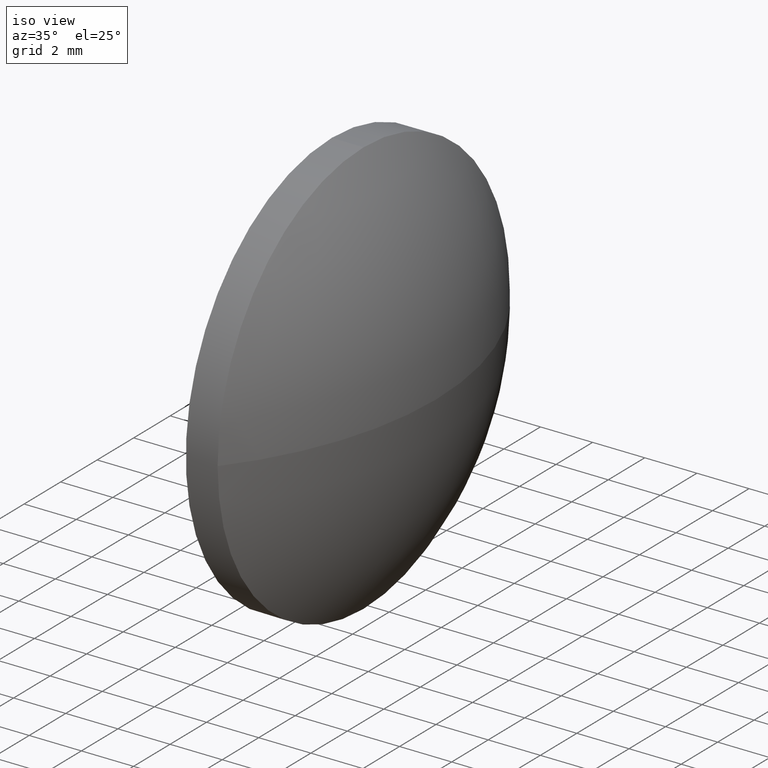
[diagram: clean part render]
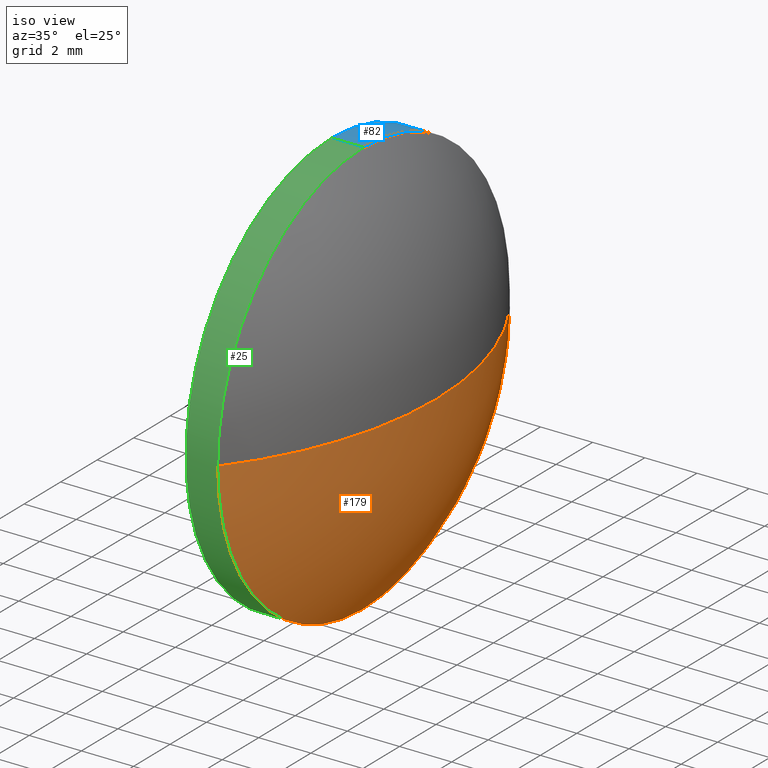
[diagram: same view with three faces highlighted in distinct colors, each labeled with its STEP entity id]
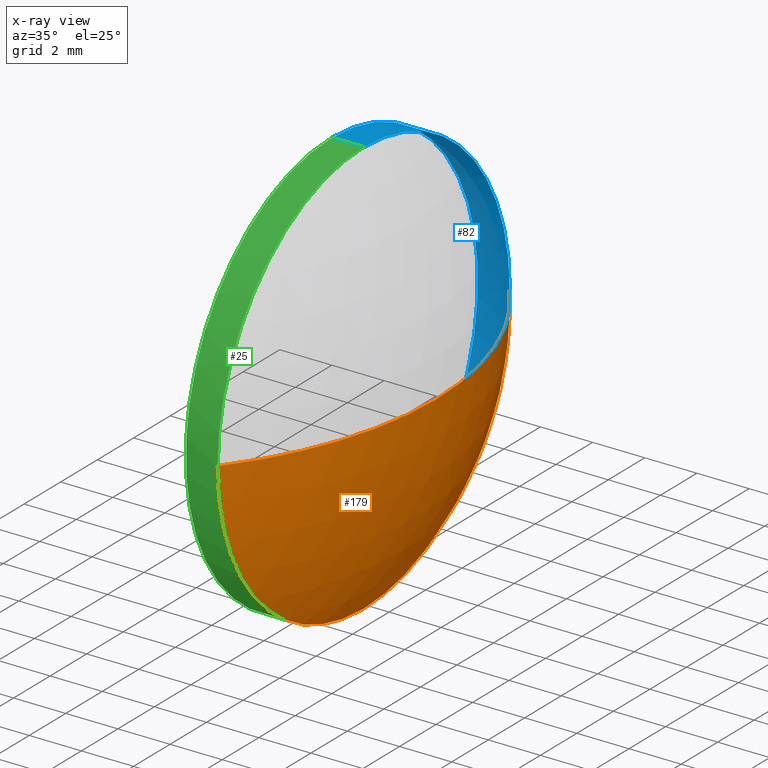
[diagram: x-ray of the same camera — body ghosted, the three highlighted faces saturated]
A machine part, iso view with three faces highlighted in distinct colors.
The next image is the same camera in x-ray (body ghosted, the three faces saturated) — at least one of them is partly hidden behind the body in this view.
Their STEP definitions:

[orange] entity #179 — the highlighted spherical surface has radius 12.9008 mm.
#1 = CARTESIAN_POINT ( 'NONE',  ( 477.6308959545011100, 109.1334144669234500, 0.0000000000000000000 ) ) ;
#4 = VERTEX_POINT ( 'NONE', #48 ) ;
#5 = CARTESIAN_POINT ( 'NONE',  ( 467.5101045875945800, 109.1334144669234400, 0.0000000000000000000 ) ) ;
#6 = AXIS2_PLACEMENT_3D ( 'NONE', #5, #120, #107 ) ;
#13 = DIRECTION ( 'NONE',  ( 1.000000000000000000, 0.0000000000000000000, 0.0000000000000000000 ) ) ;
#16 = CARTESIAN_POINT ( 'NONE',  ( 477.6308959545011100, 109.1334144669234500, 0.0000000000000000000 ) ) ;
#22 = ORIENTED_EDGE ( 'NONE', *, *, #115, .T. ) ;
#28 = CIRCLE ( 'NONE', #112, 8.000000000000007100 ) ;
#30 = AXIS2_PLACEMENT_3D ( 'NONE', #16, #150, #109 ) ;
#32 = ORIENTED_EDGE ( 'NONE', *, *, #98, .F. ) ;
#35 = CARTESIAN_POINT ( 'NONE',  ( 480.4108959545010900, 109.1334144669234400, 0.0000000000000000000 ) ) ;
#36 = AXIS2_PLACEMENT_3D ( 'NONE', #175, #44, #86 ) ;
#44 = DIRECTION ( 'NONE',  ( 0.0000000000000000000, 1.224646799147353200E-016, -1.000000000000000000 ) ) ;
#48 = CARTESIAN_POINT ( 'NONE',  ( 477.6308959545011100, 101.1334144669234400, -9.797174393178839500E-016 ) ) ;
#49 = CARTESIAN_POINT ( 'NONE',  ( 477.6308959545011100, 109.1334144669234500, -8.000000000000007100 ) ) ;
#74 = ORIENTED_EDGE ( 'NONE', *, *, #180, .F. ) ;
#83 = EDGE_LOOP ( 'NONE', ( #32, #22, #114, #74 ) ) ;
#84 = VERTEX_POINT ( 'NONE', #133 ) ;
#85 = CIRCLE ( 'NONE', #36, 12.90079136690652800 ) ;
#86 = DIRECTION ( 'NONE',  ( 0.0000000000000000000, 1.000000000000000000, 1.224646799147353200E-016 ) ) ;
#98 = EDGE_CURVE ( 'NONE', #171, #84, #110, .T. ) ;
#107 = DIRECTION ( 'NONE',  ( 0.0000000000000000000, 1.000000000000000000, 0.0000000000000000000 ) ) ;
#109 = DIRECTION ( 'NONE',  ( 0.0000000000000000000, 0.0000000000000000000, 1.000000000000000000 ) ) ;
#110 = CIRCLE ( 'NONE', #141, 12.90079136690652800 ) ;
#112 = AXIS2_PLACEMENT_3D ( 'NONE', #1, #176, #139 ) ;
#113 = SPHERICAL_SURFACE ( 'NONE', #6, 12.90079136690652800 ) ;
#114 = ORIENTED_EDGE ( 'NONE', *, *, #122, .F. ) ;
#115 = EDGE_CURVE ( 'NONE', #171, #4, #85, .T. ) ;
#120 = DIRECTION ( 'NONE',  ( -0.0000000000000000000, 0.0000000000000000000, -1.000000000000000000 ) ) ;
#121 = VERTEX_POINT ( 'NONE', #49 ) ;
#122 = EDGE_CURVE ( 'NONE', #121, #4, #28, .T. ) ;
#133 = CARTESIAN_POINT ( 'NONE',  ( 477.6308959545011100, 117.1334144669234700, 0.0000000000000000000 ) ) ;
#138 = FACE_OUTER_BOUND ( 'NONE', #83, .T. ) ;
#139 = DIRECTION ( 'NONE',  ( 0.0000000000000000000, 0.0000000000000000000, 1.000000000000000000 ) ) ;
#141 = AXIS2_PLACEMENT_3D ( 'NONE', #159, #183, #13 ) ;
#143 = CIRCLE ( 'NONE', #30, 8.000000000000007100 ) ;
#150 = DIRECTION ( 'NONE',  ( -1.000000000000000000, -0.0000000000000000000, -0.0000000000000000000 ) ) ;
#159 = CARTESIAN_POINT ( 'NONE',  ( 467.5101045875945800, 109.1334144669234400, 0.0000000000000000000 ) ) ;
#171 = VERTEX_POINT ( 'NONE', #35 ) ;
#175 = CARTESIAN_POINT ( 'NONE',  ( 467.5101045875945800, 109.1334144669234400, 0.0000000000000000000 ) ) ;
#176 = DIRECTION ( 'NONE',  ( -1.000000000000000000, -0.0000000000000000000, -0.0000000000000000000 ) ) ;
#179 = ADVANCED_FACE ( 'NONE', ( #138 ), #113, .T. ) ;
#180 = EDGE_CURVE ( 'NONE', #84, #121, #143, .T. ) ;
#183 = DIRECTION ( 'NONE',  ( -0.0000000000000000000, 0.0000000000000000000, 1.000000000000000000 ) ) ;

[blue] entity #82 — the highlighted cylindrical surface (partial cylindrical patch) has radius 8 mm, axis along (-1, -0, -0).
#8 = DIRECTION ( 'NONE',  ( -1.000000000000000000, -0.0000000000000000000, -0.0000000000000000000 ) ) ;
#9 = ORIENTED_EDGE ( 'NONE', *, *, #53, .F. ) ;
#10 = DIRECTION ( 'NONE',  ( -1.000000000000000000, -0.0000000000000000000, -0.0000000000000000000 ) ) ;
#14 = EDGE_CURVE ( 'NONE', #121, #43, #148, .T. ) ;
#16 = CARTESIAN_POINT ( 'NONE',  ( 477.6308959545011100, 109.1334144669234500, 0.0000000000000000000 ) ) ;
#20 = EDGE_CURVE ( 'NONE', #134, #43, #52, .T. ) ;
#24 = CARTESIAN_POINT ( 'NONE',  ( 474.4880792496553600, 109.1334144669234500, -8.000000000000007100 ) ) ;
#29 = ORIENTED_EDGE ( 'NONE', *, *, #20, .F. ) ;
#30 = AXIS2_PLACEMENT_3D ( 'NONE', #16, #150, #109 ) ;
#43 = VERTEX_POINT ( 'NONE', #130 ) ;
#45 = CARTESIAN_POINT ( 'NONE',  ( 476.4108959545010300, 109.1334144669234500, 8.000000000000007100 ) ) ;
#49 = CARTESIAN_POINT ( 'NONE',  ( 477.6308959545011100, 109.1334144669234500, -8.000000000000007100 ) ) ;
#51 = CYLINDRICAL_SURFACE ( 'NONE', #158, 8.000000000000007100 ) ;
#52 = CIRCLE ( 'NONE', #135, 8.000000000000007100 ) ;
#53 = EDGE_CURVE ( 'NONE', #104, #134, #131, .T. ) ;
#56 = EDGE_CURVE ( 'NONE', #104, #84, #146, .T. ) ;
#62 = CARTESIAN_POINT ( 'NONE',  ( 474.4880792496553600, 109.1334144669234500, 0.0000000000000000000 ) ) ;
#65 = DIRECTION ( 'NONE',  ( -1.000000000000000000, -0.0000000000000000000, -0.0000000000000000000 ) ) ;
#70 = ORIENTED_EDGE ( 'NONE', *, *, #14, .T. ) ;
#77 = CARTESIAN_POINT ( 'NONE',  ( 474.4880792496553600, 109.1334144669234500, 8.000000000000007100 ) ) ;
#79 = DIRECTION ( 'NONE',  ( -1.000000000000000000, -0.0000000000000000000, -0.0000000000000000000 ) ) ;
#81 = FACE_OUTER_BOUND ( 'NONE', #127, .T. ) ;
#82 = ADVANCED_FACE ( 'NONE', ( #81 ), #51, .T. ) ;
#84 = VERTEX_POINT ( 'NONE', #133 ) ;
#87 = VECTOR ( 'NONE', #157, 1000.000000000000000 ) ;
#94 = CARTESIAN_POINT ( 'NONE',  ( 477.6308959545011100, 109.1334144669234500, 0.0000000000000000000 ) ) ;
#96 = CARTESIAN_POINT ( 'NONE',  ( 476.4108959545010300, 109.1334144669234500, 0.0000000000000000000 ) ) ;
#97 = DIRECTION ( 'NONE',  ( 0.0000000000000000000, 0.0000000000000000000, 1.000000000000000000 ) ) ;
#104 = VERTEX_POINT ( 'NONE', #169 ) ;
#109 = DIRECTION ( 'NONE',  ( 0.0000000000000000000, 0.0000000000000000000, 1.000000000000000000 ) ) ;
#111 = DIRECTION ( 'NONE',  ( 0.0000000000000000000, 0.0000000000000000000, 1.000000000000000000 ) ) ;
#121 = VERTEX_POINT ( 'NONE', #49 ) ;
#127 = EDGE_LOOP ( 'NONE', ( #164, #70, #29, #9, #140 ) ) ;
#130 = CARTESIAN_POINT ( 'NONE',  ( 476.4108959545010300, 109.1334144669234500, -8.000000000000007100 ) ) ;
#131 = LINE ( 'NONE', #77, #87 ) ;
#133 = CARTESIAN_POINT ( 'NONE',  ( 477.6308959545011100, 117.1334144669234700, 0.0000000000000000000 ) ) ;
#134 = VERTEX_POINT ( 'NONE', #45 ) ;
#135 = AXIS2_PLACEMENT_3D ( 'NONE', #96, #10, #155 ) ;
#140 = ORIENTED_EDGE ( 'NONE', *, *, #56, .T. ) ;
#143 = CIRCLE ( 'NONE', #30, 8.000000000000007100 ) ;
#146 = CIRCLE ( 'NONE', #163, 8.000000000000007100 ) ;
#148 = LINE ( 'NONE', #24, #185 ) ;
#150 = DIRECTION ( 'NONE',  ( -1.000000000000000000, -0.0000000000000000000, -0.0000000000000000000 ) ) ;
#155 = DIRECTION ( 'NONE',  ( 0.0000000000000000000, 0.0000000000000000000, 1.000000000000000000 ) ) ;
#157 = DIRECTION ( 'NONE',  ( -1.000000000000000000, -0.0000000000000000000, -0.0000000000000000000 ) ) ;
#158 = AXIS2_PLACEMENT_3D ( 'NONE', #62, #79, #97 ) ;
#163 = AXIS2_PLACEMENT_3D ( 'NONE', #94, #8, #111 ) ;
#164 = ORIENTED_EDGE ( 'NONE', *, *, #180, .T. ) ;
#169 = CARTESIAN_POINT ( 'NONE',  ( 477.6308959545011100, 109.1334144669234500, 8.000000000000007100 ) ) ;
#180 = EDGE_CURVE ( 'NONE', #84, #121, #143, .T. ) ;
#185 = VECTOR ( 'NONE', #65, 1000.000000000000000 ) ;

[green] entity #25 — the highlighted cylindrical surface (partial cylindrical patch) has radius 8 mm, axis along (-1, -0, -0).
#1 = CARTESIAN_POINT ( 'NONE',  ( 477.6308959545011100, 109.1334144669234500, 0.0000000000000000000 ) ) ;
#4 = VERTEX_POINT ( 'NONE', #48 ) ;
#14 = EDGE_CURVE ( 'NONE', #121, #43, #148, .T. ) ;
#21 = ORIENTED_EDGE ( 'NONE', *, *, #122, .T. ) ;
#23 = CARTESIAN_POINT ( 'NONE',  ( 476.4108959545010300, 109.1334144669234500, 0.0000000000000000000 ) ) ;
#24 = CARTESIAN_POINT ( 'NONE',  ( 474.4880792496553600, 109.1334144669234500, -8.000000000000007100 ) ) ;
#25 = ADVANCED_FACE ( 'NONE', ( #59 ), #172, .T. ) ;
#28 = CIRCLE ( 'NONE', #112, 8.000000000000007100 ) ;
#41 = CIRCLE ( 'NONE', #136, 8.000000000000007100 ) ;
#42 = DIRECTION ( 'NONE',  ( 0.0000000000000000000, 0.0000000000000000000, 1.000000000000000000 ) ) ;
#43 = VERTEX_POINT ( 'NONE', #130 ) ;
#45 = CARTESIAN_POINT ( 'NONE',  ( 476.4108959545010300, 109.1334144669234500, 8.000000000000007100 ) ) ;
#47 = ORIENTED_EDGE ( 'NONE', *, *, #14, .F. ) ;
#48 = CARTESIAN_POINT ( 'NONE',  ( 477.6308959545011100, 101.1334144669234400, -9.797174393178839500E-016 ) ) ;
#49 = CARTESIAN_POINT ( 'NONE',  ( 477.6308959545011100, 109.1334144669234500, -8.000000000000007100 ) ) ;
#53 = EDGE_CURVE ( 'NONE', #104, #134, #131, .T. ) ;
#59 = FACE_OUTER_BOUND ( 'NONE', #68, .T. ) ;
#63 = ORIENTED_EDGE ( 'NONE', *, *, #53, .T. ) ;
#65 = DIRECTION ( 'NONE',  ( -1.000000000000000000, -0.0000000000000000000, -0.0000000000000000000 ) ) ;
#66 = EDGE_CURVE ( 'NONE', #43, #134, #41, .T. ) ;
#67 = ORIENTED_EDGE ( 'NONE', *, *, #92, .T. ) ;
#68 = EDGE_LOOP ( 'NONE', ( #47, #21, #67, #63, #152 ) ) ;
#69 = CIRCLE ( 'NONE', #167, 8.000000000000007100 ) ;
#77 = CARTESIAN_POINT ( 'NONE',  ( 474.4880792496553600, 109.1334144669234500, 8.000000000000007100 ) ) ;
#80 = DIRECTION ( 'NONE',  ( 0.0000000000000000000, 0.0000000000000000000, 1.000000000000000000 ) ) ;
#87 = VECTOR ( 'NONE', #157, 1000.000000000000000 ) ;
#92 = EDGE_CURVE ( 'NONE', #4, #104, #69, .T. ) ;
#95 = DIRECTION ( 'NONE',  ( 0.0000000000000000000, 0.0000000000000000000, 1.000000000000000000 ) ) ;
#99 = DIRECTION ( 'NONE',  ( -1.000000000000000000, -0.0000000000000000000, -0.0000000000000000000 ) ) ;
#104 = VERTEX_POINT ( 'NONE', #169 ) ;
#105 = AXIS2_PLACEMENT_3D ( 'NONE', #156, #166, #80 ) ;
#112 = AXIS2_PLACEMENT_3D ( 'NONE', #1, #176, #139 ) ;
#121 = VERTEX_POINT ( 'NONE', #49 ) ;
#122 = EDGE_CURVE ( 'NONE', #121, #4, #28, .T. ) ;
#128 = DIRECTION ( 'NONE',  ( -1.000000000000000000, -0.0000000000000000000, -0.0000000000000000000 ) ) ;
#130 = CARTESIAN_POINT ( 'NONE',  ( 476.4108959545010300, 109.1334144669234500, -8.000000000000007100 ) ) ;
#131 = LINE ( 'NONE', #77, #87 ) ;
#134 = VERTEX_POINT ( 'NONE', #45 ) ;
#136 = AXIS2_PLACEMENT_3D ( 'NONE', #23, #128, #95 ) ;
#139 = DIRECTION ( 'NONE',  ( 0.0000000000000000000, 0.0000000000000000000, 1.000000000000000000 ) ) ;
#148 = LINE ( 'NONE', #24, #185 ) ;
#152 = ORIENTED_EDGE ( 'NONE', *, *, #66, .F. ) ;
#156 = CARTESIAN_POINT ( 'NONE',  ( 474.4880792496553600, 109.1334144669234500, 0.0000000000000000000 ) ) ;
#157 = DIRECTION ( 'NONE',  ( -1.000000000000000000, -0.0000000000000000000, -0.0000000000000000000 ) ) ;
#166 = DIRECTION ( 'NONE',  ( -1.000000000000000000, -0.0000000000000000000, -0.0000000000000000000 ) ) ;
#167 = AXIS2_PLACEMENT_3D ( 'NONE', #168, #99, #42 ) ;
#168 = CARTESIAN_POINT ( 'NONE',  ( 477.6308959545011100, 109.1334144669234500, 0.0000000000000000000 ) ) ;
#169 = CARTESIAN_POINT ( 'NONE',  ( 477.6308959545011100, 109.1334144669234500, 8.000000000000007100 ) ) ;
#172 = CYLINDRICAL_SURFACE ( 'NONE', #105, 8.000000000000007100 ) ;
#176 = DIRECTION ( 'NONE',  ( -1.000000000000000000, -0.0000000000000000000, -0.0000000000000000000 ) ) ;
#185 = VECTOR ( 'NONE', #65, 1000.000000000000000 ) ;